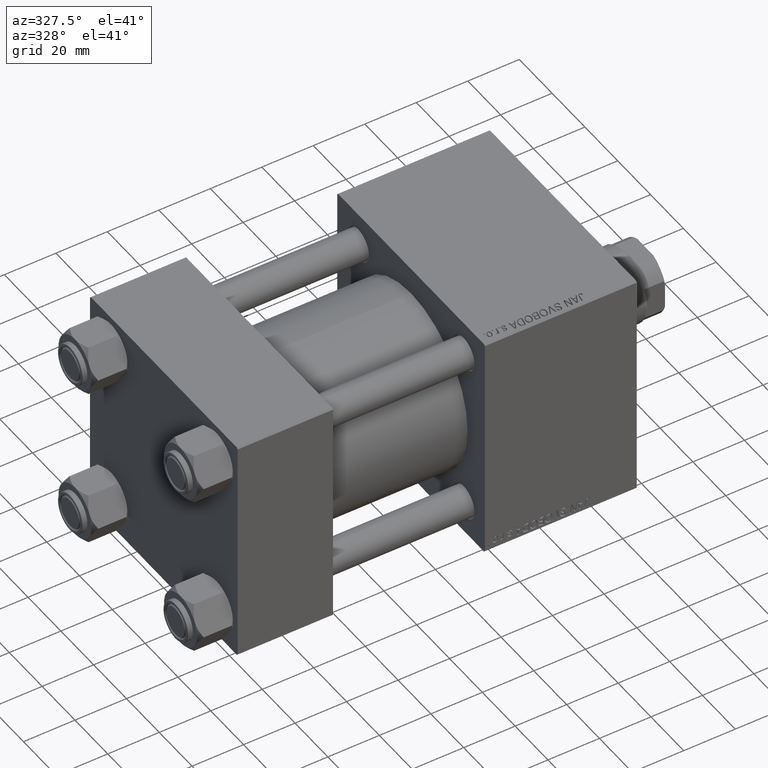
[diagram: clean part render]
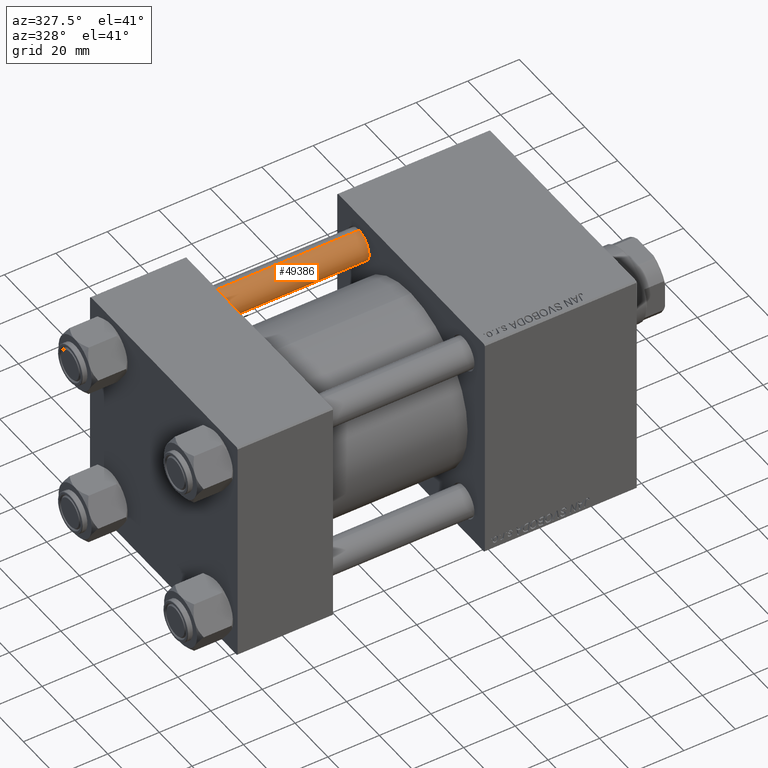
[diagram: same view with one face highlighted and labeled with its STEP entity id]
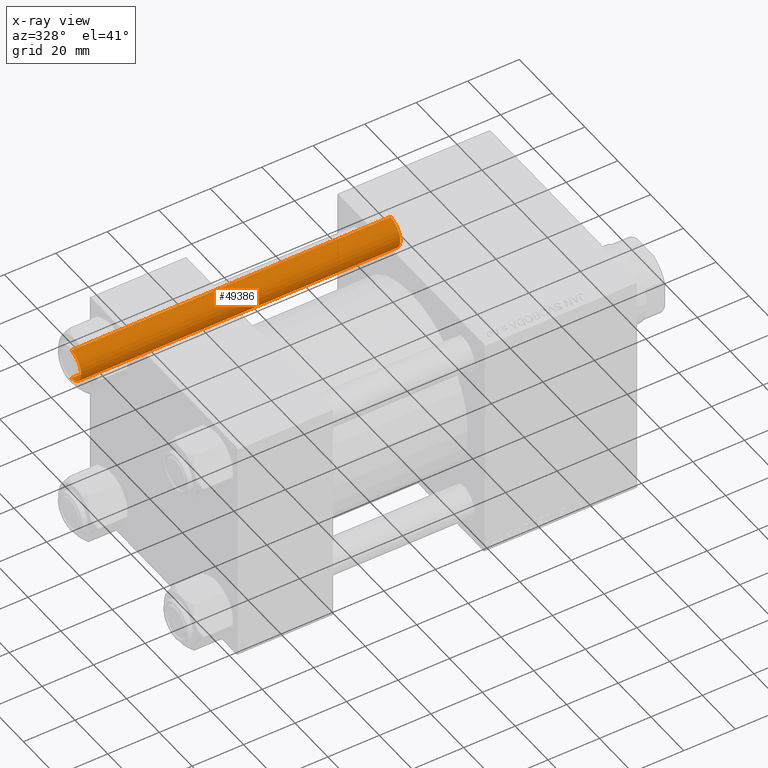
[diagram: x-ray of the same camera — body ghosted, the highlighted face saturated]
A machine part, auxiliary view. The second image highlights one B-rep face of the part: STEP entity #49386.
The next image is the same camera in x-ray: the body ghosted, the highlighted face saturated — about 0% of this face is hidden behind the body in this view.
In plain terms, the highlighted cylindrical surface (edge-blend (fillet) strip) has radius 6 mm, axis along (-1, -0, 0).
Its self-contained STEP definition (entity closure, byte-faithful):
#110 = AXIS2_PLACEMENT_3D ( 'NONE', #35128, #15082, #3144 ) ;
#651 = DIRECTION ( 'NONE',  ( 1.000000000000000000, 0.000000000000000000, 0.000000000000000000 ) ) ;
#1455 = LINE ( 'NONE', #37252, #36583 ) ;
#1983 = FACE_OUTER_BOUND ( 'NONE', #36184, .T. ) ;
#2461 = DIRECTION ( 'NONE',  ( -0.000000000000000000, -0.000000000000000000, -1.000000000000000000 ) ) ;
#3144 = DIRECTION ( 'NONE',  ( 1.000000000000000000, 0.000000000000000000, 0.000000000000000000 ) ) ;
#6042 = EDGE_CURVE ( 'NONE', #12376, #33481, #20994, .T. ) ;
#6732 = DIRECTION ( 'NONE',  ( -0.000000000000000000, -0.000000000000000000, -1.000000000000000000 ) ) ;
#7857 = CARTESIAN_POINT ( 'NONE',  ( -6.000000000000000888, 0.000000000000000000, 0.4999999999999865663 ) ) ;
#8538 = CARTESIAN_POINT ( 'NONE',  ( -6.000000000000000888, 0.000000000000000000, 124.5000000000000000 ) ) ;
#9626 = EDGE_CURVE ( 'NONE', #38879, #33481, #1455, .T. ) ;
#12335 = CARTESIAN_POINT ( 'NONE',  ( 0.000000000000000000, 0.000000000000000000, 0.4999999999999865663 ) ) ;
#12376 = VERTEX_POINT ( 'NONE', #7857 ) ;
#12679 = ORIENTED_EDGE ( 'NONE', *, *, #14639, .T. ) ;
#13161 = CARTESIAN_POINT ( 'NONE',  ( 0.000000000000000000, 0.000000000000000000, 125.0000000000000000 ) ) ;
#14363 = CYLINDRICAL_SURFACE ( 'NONE', #30360, 6.000000000000000888 ) ;
#14639 = EDGE_CURVE ( 'NONE', #38879, #45864, #43890, .T. ) ;
#14851 = CARTESIAN_POINT ( 'NONE',  ( 6.000000000000000888, 7.347880794884120722E-16, 0.4999999999999865663 ) ) ;
#15082 = DIRECTION ( 'NONE',  ( 0.000000000000000000, 0.000000000000000000, -1.000000000000000000 ) ) ;
#19458 = LINE ( 'NONE', #30631, #45994 ) ;
#20994 = CIRCLE ( 'NONE', #44512, 6.000000000000000888 ) ;
#23608 = ORIENTED_EDGE ( 'NONE', *, *, #32468, .T. ) ;
#27824 = DIRECTION ( 'NONE',  ( -0.000000000000000000, -0.000000000000000000, 1.000000000000000000 ) ) ;
#30360 = AXIS2_PLACEMENT_3D ( 'NONE', #13161, #6732, #44128 ) ;
#30631 = CARTESIAN_POINT ( 'NONE',  ( -6.000000000000000888, 0.000000000000000000, 125.0000000000000000 ) ) ;
#31628 = DIRECTION ( 'NONE',  ( -0.000000000000000000, -0.000000000000000000, -1.000000000000000000 ) ) ;
#32468 = EDGE_CURVE ( 'NONE', #45864, #12376, #19458, .T. ) ;
#33481 = VERTEX_POINT ( 'NONE', #14851 ) ;
#35128 = CARTESIAN_POINT ( 'NONE',  ( 0.000000000000000000, 0.000000000000000000, 124.5000000000000000 ) ) ;
#36184 = EDGE_LOOP ( 'NONE', ( #47203, #12679, #23608, #46407 ) ) ;
#36583 = VECTOR ( 'NONE', #2461, 1000.000000000000000 ) ;
#37079 = CARTESIAN_POINT ( 'NONE',  ( 6.000000000000000888, 7.347880794884120722E-16, 124.5000000000000000 ) ) ;
#37252 = CARTESIAN_POINT ( 'NONE',  ( 6.000000000000000888, 7.347880794884120722E-16, 125.0000000000000000 ) ) ;
#38879 = VERTEX_POINT ( 'NONE', #37079 ) ;
#43890 = CIRCLE ( 'NONE', #110, 6.000000000000000888 ) ;
#44128 = DIRECTION ( 'NONE',  ( -1.000000000000000000, 0.000000000000000000, 0.000000000000000000 ) ) ;
#44512 = AXIS2_PLACEMENT_3D ( 'NONE', #12335, #27824, #651 ) ;
#45864 = VERTEX_POINT ( 'NONE', #8538 ) ;
#45994 = VECTOR ( 'NONE', #31628, 1000.000000000000000 ) ;
#46407 = ORIENTED_EDGE ( 'NONE', *, *, #6042, .T. ) ;
#47203 = ORIENTED_EDGE ( 'NONE', *, *, #9626, .F. ) ;
#49386 = ADVANCED_FACE ( 'NONE', ( #1983 ), #14363, .T. ) ;